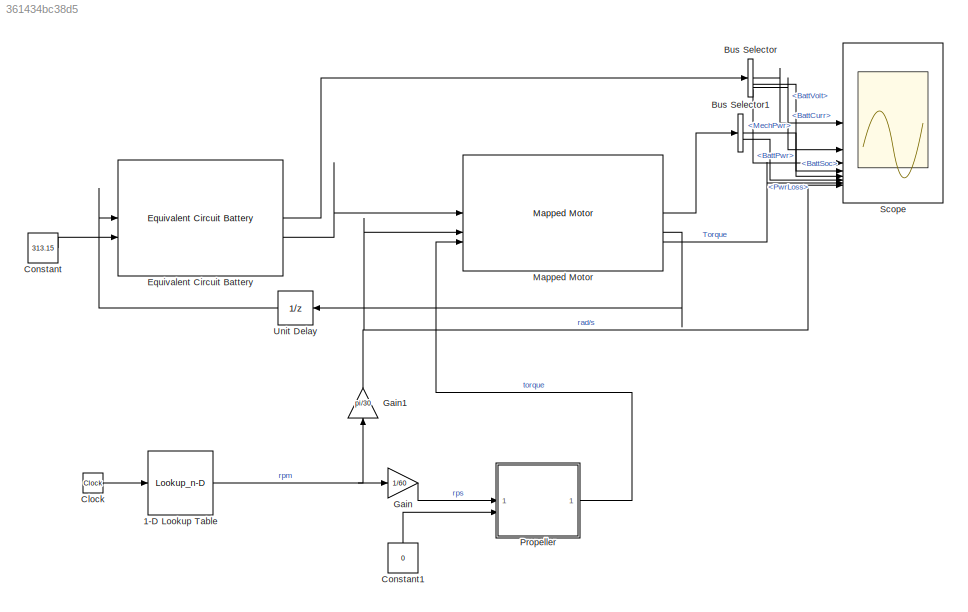
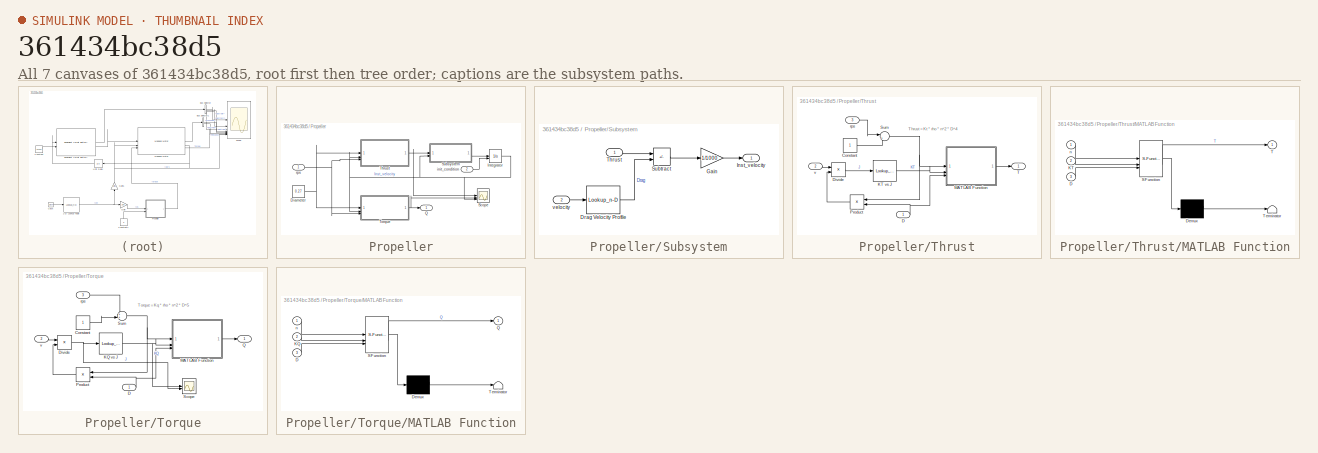
[diagram: thumbnail index - all 7 canvases of the model, root first then tree order]
MODEL slx_361434bc38d5
KIND model
CONFIG AbsTol = auto
CONFIG EnableMultiTasking = off
CONFIG FixedStep = auto
CONFIG MaxStep = auto
CONFIG MinStep = auto
CONFIG RelTol = 1e-3
CONFIG SampleTimeConstraint = Unconstrained
CONFIG SolverName = VariableStepAuto
CONFIG StartTime = 0.0
CONFIG StopTime = 5856
WORKSPACE source: mxarray member
WORKSPACE RPM = [0 500 500 500 500 1000 2000 3000 4000 3000 3000 3000 ... (62 elements, 62x1)]
WORKSPACE Time = [0 96 192 288 384 480 576 672 768 864 960 1056 ... (62 elements, 62x1)]
BLOCK [Lookup_n-D] 1-D Lookup Table
  BreakpointsForDimension1 = Time
  InputPortMap = u0
  InternalRulePriority = Speed
  NumberOfTableDimensions = 1
  RndMeth = Simplest
  Table = RPM
BLOCK [BusSelector] Bus Selector
  OutputSignals = BattCurr,BattSoc,BattVolt,BattPwr
BLOCK [BusSelector] Bus Selector1
  OutputSignals = MechPwr,PwrLoss
BLOCK [Clock] Clock
BLOCK [Constant] Constant
  Value = 313.15
BLOCK [Constant] Constant1
  NameLocation = right
  Value = 0
BLOCK [Reference] Equivalent Circuit Battery  REF=autolibrcnetworksystem/Equivalent Circuit Battery
  SourceBlock = autolibrcnetworksystem/Equivalent Circuit Battery
  SourceType = Equivalent Circuit Battery
BLOCK [Gain] Gain
  Gain = 1/60
BLOCK [Gain] Gain1
  Gain = pi/30
  NameLocation = right
BLOCK [Reference] Mapped Motor  REF=autolibmappedmotor/Mapped Motor
  LibrarySourceBlock = autolibemachines/Mapped Motor
  SourceBlock = autolibmappedmotor/Mapped Motor
  SourceType = MappedMotor
BLOCK [SubSystem] Propeller
BLOCK [Constant] Propeller/Diameter
  Value = 0.27
BLOCK [Integrator] Propeller/Integrator
  InitialConditionSource = external
BLOCK [Outport] Propeller/Q
BLOCK [Scope] Propeller/Scope
  Floating = off
  NumInputPorts = 3
  ScopeSpecificationString = Simulink.scopes.TimeScopeBlockCfg('CurrentConfiguration', extmgr.ConfigurationSet(extmgr.Configuration('Core','General UI',true),extmgr.Configuration('Core','Source UI',true),extmgr.Configuration('Sources','WiredSimulink',true,'DataLoggingVariableName','ScopeData1'),extmgr.Configuration('Visuals','Time Domain',true,'SerializedDisplays',{struct('MinYLimReal','-464.85194','MaxYLimReal','4215.06956',...<+2757ch>
BLOCK [SubSystem] Propeller/Subsystem
BLOCK [Lookup_n-D] Propeller/Subsystem/Drag Velocity Profile
  BreakpointsForDimension1 = [0 2.338181818 4.676363636 7.014545455 8.692839942 8.848719191 11.69090909 14.02909091 16.36727273 18.70545455 21.04363636]
  InputPortMap = u0
  InternalRulePriority = Speed
  NumberOfTableDimensions = 1
  RndMeth = Simplest
  Table = [0.1 2401.65157 3164.117316 3385.663625 3683.299572 1921.181996 1667.962675 1568.170036 1832.926016 1978.032659 2280.974598]
BLOCK [Gain] Propeller/Subsystem/Gain
  Gain = 1/1000
BLOCK [Outport] Propeller/Subsystem/Inst_velocity
BLOCK [Sum] Propeller/Subsystem/Subtract
  IconShape = rectangular
  Inputs = +-
BLOCK [Inport] Propeller/Subsystem/Thrust
BLOCK [Inport] Propeller/Subsystem/velocity
  Port = 2
BLOCK [SubSystem] Propeller/Thrust
BLOCK [Constant] Propeller/Thrust/Constant
BLOCK [Inport] Propeller/Thrust/D
BLOCK [Product] Propeller/Thrust/Divide
  Inputs = */
BLOCK [Lookup_n-D] Propeller/Thrust/KT vs J
  BreakpointsForDimension1 = [0.0014;0.018198;0.034996;0.053193;0.074191;0.095188;0.109186;0.130184;0.151181;0.172178;0.195976;0.214173;0.23937;0.253368;0.274366;0.295363;0.31916;0.337358;0.354156;0.376553;0.393351;0.411549;0.432546;0.453543;0.473141;0.491339;0.512336;0.533333;0.550131;0.571129;0.589326;0.610324;0.635521;0.652318;0.676115;0.697113;0.72231;0.750306;0.774103;0.7993;0.827297;0.851094;0.869291;0.894488;0.925284;0...<+61ch>
  InputPortMap = u0
  InterpMethod = Cubic spline
  NumberOfTableDimensions = 1
  Table = [0.591807;0.582718;0.576664;0.564542;0.55394;0.546373;0.537281;0.531231;0.519112;0.508509;0.496392;0.481235;0.473672;0.466098;0.453978;0.443376;0.431259;0.420654;0.413082;0.397929;0.387323;0.378236;0.367633;0.352479;0.34491;0.332788;0.322185;0.310066;0.296425;0.28734;0.276735;0.264615;0.254017;0.241893;0.228259;0.216139;0.200989;0.185841;0.170689;0.155538;0.144942;0.128273;0.114633;0.102518;0.0873...<+65ch>
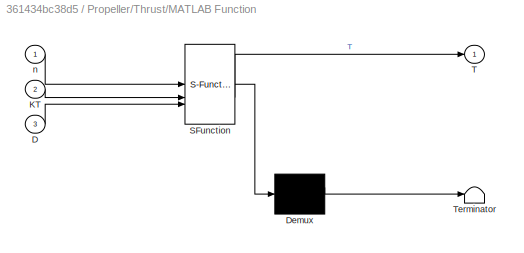
BLOCK [SubSystem] Propeller/Thrust/MATLAB Function
  ErrorFcn = Stateflow.Translate.translate
  PermitHierarchicalResolution = ExplicitOnly
  SFBlockType = MATLAB Function
  TreatAsAtomicUnit = on
BLOCK [Demux] Propeller/Thrust/MATLAB Function/ Demux 
  Outputs = 1
BLOCK [S-Function] Propeller/Thrust/MATLAB Function/ SFunction 
  EnableBusSupport = on
  FunctionName = sf_sfun
  PortCounts = [3 2]
  SFcnIsStateOwnerBlock = off
  SFunctionDeploymentMode = off
  Tag = Stateflow S-Function 6
BLOCK [Terminator] Propeller/Thrust/MATLAB Function/ Terminator 
BLOCK [Inport] Propeller/Thrust/MATLAB Function/D
  Port = 3
BLOCK [Inport] Propeller/Thrust/MATLAB Function/KT
  Port = 2
BLOCK [Outport] Propeller/Thrust/MATLAB Function/T
BLOCK [Inport] Propeller/Thrust/MATLAB Function/n
BLOCK [Product] Propeller/Thrust/Product
  NameLocation = top
BLOCK [Sum] Propeller/Thrust/Sum
  Inputs = |++
BLOCK [Outport] Propeller/Thrust/T
BLOCK [Inport] Propeller/Thrust/rps
  Port = 3
BLOCK [Inport] Propeller/Thrust/v
  Port = 2
BLOCK [SubSystem] Propeller/Torque
BLOCK [Constant] Propeller/Torque/Constant
BLOCK [Inport] Propeller/Torque/D
BLOCK [Product] Propeller/Torque/Divide
  Inputs = */
BLOCK [Lookup_n-D] Propeller/Torque/KQ vs J
  BreakpointsForDimension1 = [0;0.018198;0.039195;0.065792;0.088189;0.111986;0.135783;0.165179;0.188976;0.209974;0.230971;0.261767;0.286964;0.31776;0.338758;0.363955;0.384952;0.410149;0.433946;0.454943;0.47874;0.506737;0.527734;0.548731;0.566929;0.592126;0.620122;0.653718;0.678915;0.706912;0.734908;0.765704;0.7979;0.821697;0.849694;0.874891;0.895888;0.921085;0.940682;0.965879;0.993876;1.019073;1.04287;1.073666;1.096063;1.1156...<+30ch>
  InputPortMap = u0
  NumberOfTableDimensions = 1
  Table = [0.096049;0.095151;0.093647;0.092147;0.091252;0.088535;0.087641;0.085232;0.08373;0.081619;0.080115;0.078618;0.07651;0.074102;0.07199;0.069577;0.068074;0.065661;0.063552;0.06144;0.059634;0.057528;0.056024;0.053912;0.051495;0.049994;0.046976;0.044874;0.042461;0.040355;0.037337;0.034928;0.032825;0.030412;0.028305;0.026805;0.024389;0.02228;0.020776;0.018971;0.016865;0.015364;0.013862;0.011758;0.010255...<+30ch>
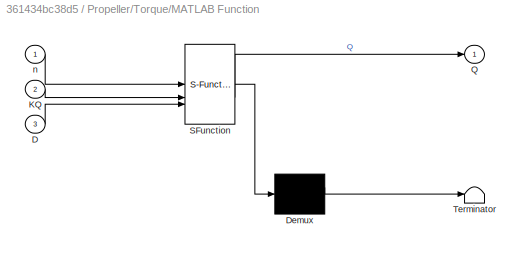
BLOCK [SubSystem] Propeller/Torque/MATLAB Function
  ErrorFcn = Stateflow.Translate.translate
  PermitHierarchicalResolution = ExplicitOnly
  SFBlockType = MATLAB Function
  TreatAsAtomicUnit = on
BLOCK [Demux] Propeller/Torque/MATLAB Function/ Demux 
  Outputs = 1
BLOCK [S-Function] Propeller/Torque/MATLAB Function/ SFunction 
  EnableBusSupport = on
  FunctionName = sf_sfun
  PortCounts = [3 2]
  SFcnIsStateOwnerBlock = off
  SFunctionDeploymentMode = off
  Tag = Stateflow S-Function 7
BLOCK [Terminator] Propeller/Torque/MATLAB Function/ Terminator 
BLOCK [Inport] Propeller/Torque/MATLAB Function/D
  Port = 3
BLOCK [Inport] Propeller/Torque/MATLAB Function/KQ
  Port = 2
BLOCK [Outport] Propeller/Torque/MATLAB Function/Q
BLOCK [Inport] Propeller/Torque/MATLAB Function/n
BLOCK [Product] Propeller/Torque/Product
  NameLocation = top
BLOCK [Outport] Propeller/Torque/Q
BLOCK [Scope] Propeller/Torque/Scope
  Floating = off
  NumInputPorts = 2
  ScopeSpecificationString = Simulink.scopes.TimeScopeBlockCfg('CurrentConfiguration', extmgr.ConfigurationSet(extmgr.Configuration('Core','General UI',true),extmgr.Configuration('Core','Source UI',true),extmgr.Configuration('Sources','WiredSimulink',true,'DataLoggingVariableName','ScopeData2'),extmgr.Configuration('Visuals','Time Domain',true,'SerializedDisplays',{struct('MinYLimReal','0.01067','MaxYLimReal','0.10554','YLabe...<+2075ch>
BLOCK [Sum] Propeller/Torque/Sum
  Inputs = ++|
BLOCK [Inport] Propeller/Torque/rps
  Port = 3
BLOCK [Inport] Propeller/Torque/v
  Port = 2
BLOCK [Inport] Propeller/init_condition
  Port = 2
BLOCK [Inport] Propeller/rps
BLOCK [Scope] Scope
  Floating = off
  NumInputPorts = 8
  ScopeSpecificationString = Simulink.scopes.TimeScopeBlockCfg('CurrentConfiguration', extmgr.ConfigurationSet(extmgr.Configuration('Core','General UI',true),extmgr.Configuration('Core','Source UI',true),extmgr.Configuration('Sources','WiredSimulink',true),extmgr.Configuration('Visuals','Time Domain',true,'SerializedDisplays',{struct('MinYLimReal','-24.50326','MaxYLimReal','220.52933','YLabelReal','','MinYLimMag','0.00000','M...<+6251ch>
BLOCK [UnitDelay] Unit Delay
  HasFrameUpgradeWarning = on
  NameLocation = top
  SampleTime = -1
ANNOTATION Propeller/Thrust: Thrust = Kt * rho * n^2 * D^4
ANNOTATION Propeller/Torque: Torque = Kq * rho * n^2 * D^5
NET 1-D Lookup Table:1 -> Gain1:1, Gain:1
LINE Bus Selector1:1 -> Scope:5
LINE Bus Selector1:2 -> Scope:6
LINE Bus Selector:1 -> Scope:1
LINE Bus Selector:2 -> Scope:4
LINE Bus Selector:3 -> Scope:2
LINE Bus Selector:4 -> Scope:3
LINE Clock:1 -> 1-D Lookup Table:1
LINE Constant1:1 -> Propeller:2
LINE Constant:1 -> Equivalent Circuit Battery:2
LINE Equivalent Circuit Battery:1 -> Bus Selector:1
LINE Equivalent Circuit Battery:2 -> Mapped Motor:1
NET Gain1:1 -> Mapped Motor:2, Scope:8
LINE Gain:1 -> Propeller:1
LINE Mapped Motor:1 -> Bus Selector1:1
LINE Mapped Motor:2 -> Unit Delay:1
LINE Mapped Motor:3 -> Scope:7
NET Propeller/Diameter:1 -> Propeller/Thrust:1, Propeller/Torque:1
NET Propeller/Integrator:1 -> Propeller/Scope:3, Propeller/Subsystem:2, Propeller/Thrust:2, Propeller/Torque:2
LINE Propeller/Subsystem/Drag Velocity Profile:1 -> Propeller/Subsystem/Subtract:2
LINE Propeller/Subsystem/Gain:1 -> Propeller/Subsystem/Inst_velocity:1
LINE Propeller/Subsystem/Subtract:1 -> Propeller/Subsystem/Gain:1
LINE Propeller/Subsystem/Thrust:1 -> Propeller/Subsystem/Subtract:1
LINE Propeller/Subsystem/velocity:1 -> Propeller/Subsystem/Drag Velocity Profile:1
LINE Propeller/Subsystem:1 -> Propeller/Integrator:1
LINE Propeller/Thrust/Constant:1 -> Propeller/Thrust/Sum:2
NET Propeller/Thrust/D:1 -> Propeller/Thrust/MATLAB Function:3, Propeller/Thrust/Product:2
LINE Propeller/Thrust/Divide:1 -> Propeller/Thrust/KT vs J:1
LINE Propeller/Thrust/KT vs J:1 -> Propeller/Thrust/MATLAB Function:2
LINE Propeller/Thrust/MATLAB Function:1 -> Propeller/Thrust/T:1
LINE Propeller/Thrust/Product:1 -> Propeller/Thrust/Divide:2
NET Propeller/Thrust/Sum:1 -> Propeller/Thrust/MATLAB Function:1, Propeller/Thrust/Product:1
LINE Propeller/Thrust/rps:1 -> Propeller/Thrust/Sum:1
LINE Propeller/Thrust/v:1 -> Propeller/Thrust/Divide:1
NET Propeller/Thrust:1 -> Propeller/Scope:1, Propeller/Subsystem:1
LINE Propeller/Torque/Constant:1 -> Propeller/Torque/Sum:2
NET Propeller/Torque/D:1 -> Propeller/Torque/MATLAB Function:3, Propeller/Torque/Product:2
NET Propeller/Torque/Divide:1 -> Propeller/Torque/KQ vs J:1, Propeller/Torque/Scope:2
NET Propeller/Torque/KQ vs J:1 -> Propeller/Torque/MATLAB Function:2, Propeller/Torque/Scope:1
LINE Propeller/Torque/MATLAB Function:1 -> Propeller/Torque/Q:1
LINE Propeller/Torque/Product:1 -> Propeller/Torque/Divide:2
NET Propeller/Torque/Sum:1 -> Propeller/Torque/MATLAB Function:1, Propeller/Torque/Product:1
LINE Propeller/Torque/rps:1 -> Propeller/Torque/Sum:1
LINE Propeller/Torque/v:1 -> Propeller/Torque/Divide:1
NET Propeller/Torque:1 -> Propeller/Q:1, Propeller/Scope:2
LINE Propeller/init_condition:1 -> Propeller/Integrator:2
NET Propeller/rps:1 -> Propeller/Thrust:3, Propeller/Torque:3
LINE Propeller:1 -> Mapped Motor:3
LINE Unit Delay:1 -> Equivalent Circuit Battery:1
note: NET lines group one-source signal fan-out (src -> all destinations, sorted); 1:1 wires keep LINE
CHART Propeller/Thrust/MATLAB Function states=1 transitions=1
  STATE_LABEL 'eML_blk_kernel()'
  STATE_LABEL 'SCRIPT:\nfunction T = fcn(n,KT,D)\n    rho = 997;\n    for i = length(n)\n        T = KT * rho * n(i)^2 * D^4;\n    end\nend\n'
CHART Propeller/Torque/MATLAB Function states=1 transitions=1
  STATE_LABEL 'eML_blk_kernel()'
  STATE_LABEL 'SCRIPT:\nfunction Q = fcn(n,KQ,D)\n    rho = 997;\n    for i = length(n)\n        Q = KQ * rho * n(i)^2 * D^5;\n    end\nend\n'
CHART  states=0 transitions=0
CHART  states=0 transitions=0
